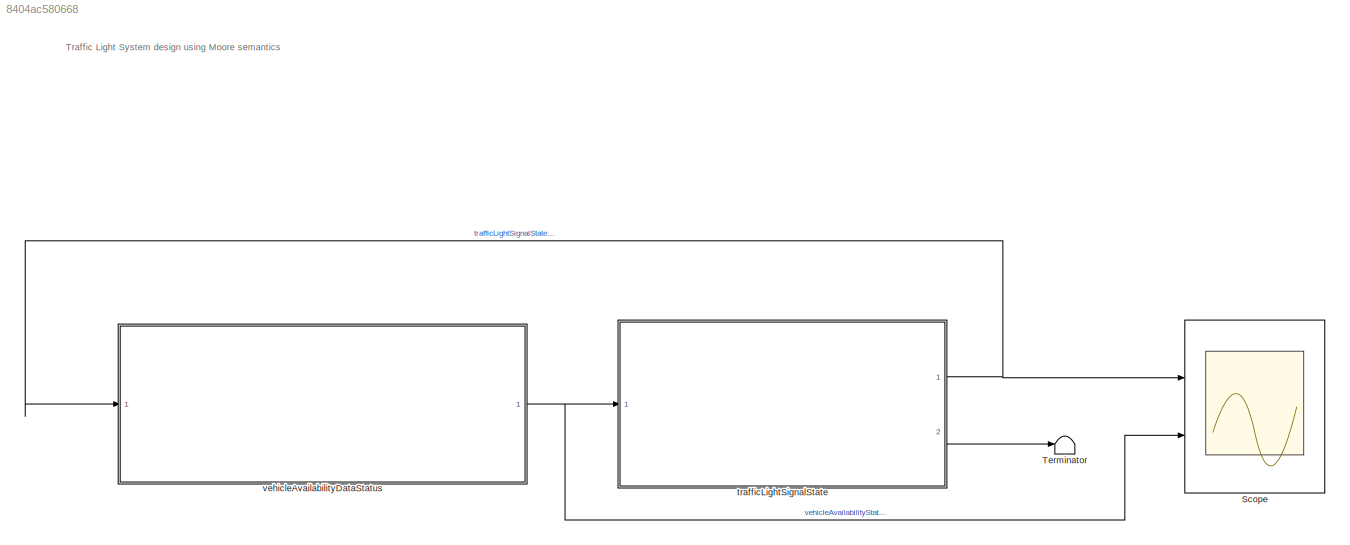
MODEL slx_8404ac580668
KIND model
CONFIG AbsTol = auto
CONFIG EnableMultiTasking = off
CONFIG FixedStep = 0.1
CONFIG MaxStep = auto
CONFIG MinStep = auto
CONFIG RelTol = 1e-3
CONFIG SampleTimeConstraint = Unconstrained
CONFIG SolverName = FixedStepDiscrete
CONFIG StartTime = 0.0
CONFIG StopTime = 150
BLOCK [Scope] Scope
  Floating = off
  NumInputPorts = 2
  Ports = [2]
  ScopeSpecificationString = Simulink.scopes.TimeScopeBlockCfg('CurrentConfiguration', extmgr.ConfigurationSet(extmgr.Configuration('Core','General UI',true),extmgr.Configuration('Core','Source UI',true),extmgr.Configuration('Sources','WiredSimulink',true),extmgr.Configuration('Visuals','Time Domain',true,'SerializedDisplays',{struct('MinYLimReal','0.75','MaxYLimReal','3.25','YLabelReal','','MinYLimMag','0.75','MaxYLimMag','3...<+2094ch>
BLOCK [Terminator] Terminator
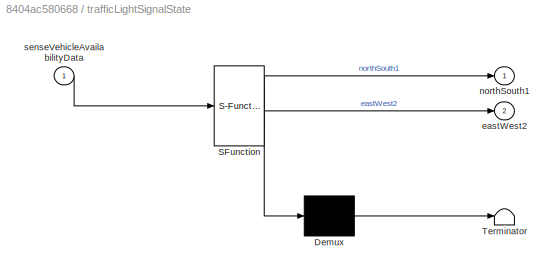
BLOCK [SubSystem] trafficLightSignalState
  ErrorFcn = Stateflow.Translate.translate
  PermitHierarchicalResolution = ExplicitOnly
  Ports = [1, 2]
  RequestExecContextInheritance = off
  SFBlockType = Chart
  TreatAsAtomicUnit = on
BLOCK [Demux] trafficLightSignalState/ Demux 
  Outputs = 1
  Ports = [1, 1]
BLOCK [S-Function] trafficLightSignalState/ SFunction 
  EnableBusSupport = on
  FunctionName = sf_sfun
  PortCounts = [1 3]
  Ports = [1, 3]
  SFcnIsStateOwnerBlock = off
  SFunctionDeploymentMode = off
  Tag = Stateflow S-Function 3
BLOCK [Terminator] trafficLightSignalState/ Terminator 
BLOCK [Outport] trafficLightSignalState/eastWest2
  Port = 2
BLOCK [Outport] trafficLightSignalState/northSouth1
BLOCK [Inport] trafficLightSignalState/senseVehicleAvailabilityData
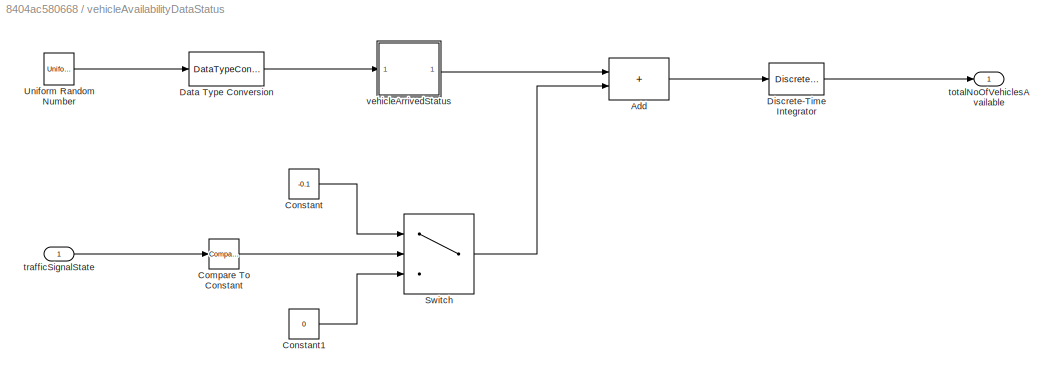
BLOCK [SubSystem] vehicleAvailabilityDataStatus
  Ports = [1, 1]
  RequestExecContextInheritance = off
BLOCK [Sum] vehicleAvailabilityDataStatus/Add
  IconShape = rectangular
  Ports = [2, 1]
BLOCK [Reference] vehicleAvailabilityDataStatus/Compare To Constant  REF=simulink/Logic and Bit
Operations/Compare
To Constant
  Ports = [1, 1]
  SourceBlock = simulink/Logic and Bit\nOperations/Compare\nTo Constant
  SourceProductBaseCode = SL
  SourceType = Compare To Constant
BLOCK [Constant] vehicleAvailabilityDataStatus/Constant
  Value = -0.1
BLOCK [Constant] vehicleAvailabilityDataStatus/Constant1
  Value = 0
BLOCK [DataTypeConversion] vehicleAvailabilityDataStatus/Data Type Conversion
  RndMeth = Floor
  SaturateOnIntegerOverflow = off
BLOCK [DiscreteIntegrator] vehicleAvailabilityDataStatus/Discrete-Time Integrator
  ICPrevOutput = DiscIntNeverNeededParam
  ICPrevScaledInput = DiscIntNeverNeededParam
  InitialConditionSetting = Auto
  LimitOutput = on
  LowerSaturationLimit = 0
  Ports = [1, 1]
  SampleTime = -1
BLOCK [Switch] vehicleAvailabilityDataStatus/Switch
  Criteria = u2 ~= 0
  InputSameDT = off
  SaturateOnIntegerOverflow = off
BLOCK [UniformRandomNumber] vehicleAvailabilityDataStatus/Uniform Random Number
  Maximum = 100
  Minimum = 0
  SampleTime = 0
  Seed = 177836
BLOCK [Outport] vehicleAvailabilityDataStatus/totalNoOfVehiclesAvailable
BLOCK [Inport] vehicleAvailabilityDataStatus/trafficSignalState
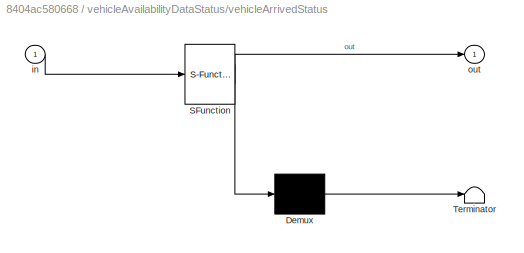
BLOCK [SubSystem] vehicleAvailabilityDataStatus/vehicleArrivedStatus
  ErrorFcn = Stateflow.Translate.translate
  PermitHierarchicalResolution = ExplicitOnly
  Ports = [1, 1]
  RequestExecContextInheritance = off
  SFBlockType = Chart
  TreatAsAtomicUnit = on
BLOCK [Demux] vehicleAvailabilityDataStatus/vehicleArrivedStatus/ Demux 
  Outputs = 1
  Ports = [1, 1]
BLOCK [S-Function] vehicleAvailabilityDataStatus/vehicleArrivedStatus/ SFunction 
  EnableBusSupport = on
  FunctionName = sf_sfun
  PortCounts = [1 2]
  Ports = [1, 2]
  SFcnIsStateOwnerBlock = off
  SFunctionDeploymentMode = off
  Tag = Stateflow S-Function 1
BLOCK [Terminator] vehicleAvailabilityDataStatus/vehicleArrivedStatus/ Terminator 
BLOCK [Inport] vehicleAvailabilityDataStatus/vehicleArrivedStatus/in
BLOCK [Outport] vehicleAvailabilityDataStatus/vehicleArrivedStatus/out
  VectorParamsAs1DForOutWhenUnconnected = off
ANNOTATION (root): Traffic Light System design using Moore semantics
NET trafficLightSignalState:1 -> Scope:1, vehicleAvailabilityDataStatus:1
LINE trafficLightSignalState:2 -> Terminator:1
LINE vehicleAvailabilityDataStatus/Add:1 -> vehicleAvailabilityDataStatus/Discrete-Time Integrator:1
LINE vehicleAvailabilityDataStatus/Compare To Constant:1 -> vehicleAvailabilityDataStatus/Switch:2
LINE vehicleAvailabilityDataStatus/Constant1:1 -> vehicleAvailabilityDataStatus/Switch:3
LINE vehicleAvailabilityDataStatus/Constant:1 -> vehicleAvailabilityDataStatus/Switch:1
LINE vehicleAvailabilityDataStatus/Data Type Conversion:1 -> vehicleAvailabilityDataStatus/vehicleArrivedStatus:1
LINE vehicleAvailabilityDataStatus/Discrete-Time Integrator:1 -> vehicleAvailabilityDataStatus/totalNoOfVehiclesAvailable:1
LINE vehicleAvailabilityDataStatus/Switch:1 -> vehicleAvailabilityDataStatus/Add:2
LINE vehicleAvailabilityDataStatus/Uniform Random Number:1 -> vehicleAvailabilityDataStatus/Data Type Conversion:1
LINE vehicleAvailabilityDataStatus/trafficSignalState:1 -> vehicleAvailabilityDataStatus/Compare To Constant:1
LINE vehicleAvailabilityDataStatus/vehicleArrivedStatus:1 -> vehicleAvailabilityDataStatus/Add:1
NET vehicleAvailabilityDataStatus:1 -> Scope:2, trafficLightSignalState:1
note: NET lines group one-source signal fan-out (src -> all destinations, sorted); 1:1 wires keep LINE
CHART vehicleAvailabilityDataStatus/vehicleArrivedStatus states=0 transitions=1
CHART trafficLightSignalState states=5 transitions=6
  STATE_LABEL 'initialStandsill\nnorthSouth1=red;\neastWest2=green;'
  STATE_LABEL 'haltSignalForMovingTraffic\nnorthSouth1=yellow;\neastWest2=red;'
  STATE_LABEL 'haltForTraffic\nnorthSouth1=red;\neastWest2=green;'
  STATE_LABEL 'moveSignalForHaltTraffic\nnorthSouth1=green;\neastWest2=red'
  STATE_LABEL 'haltTrafficToBeReady\nnorthSouth1=red;\neastWest2=yellow;'
CHART  states=0 transitions=0
CHART  states=0 transitions=0
